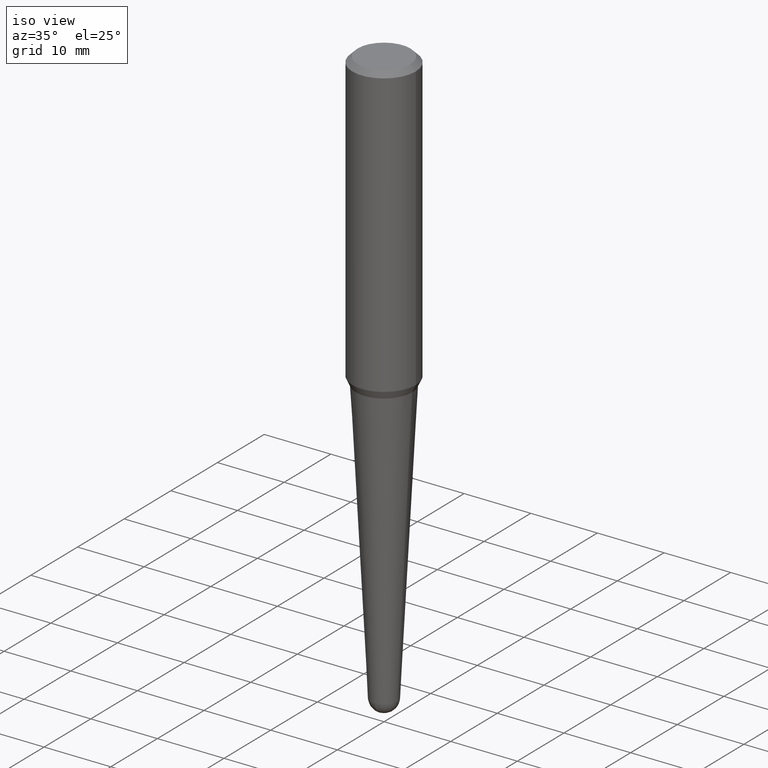
[diagram: clean part render]
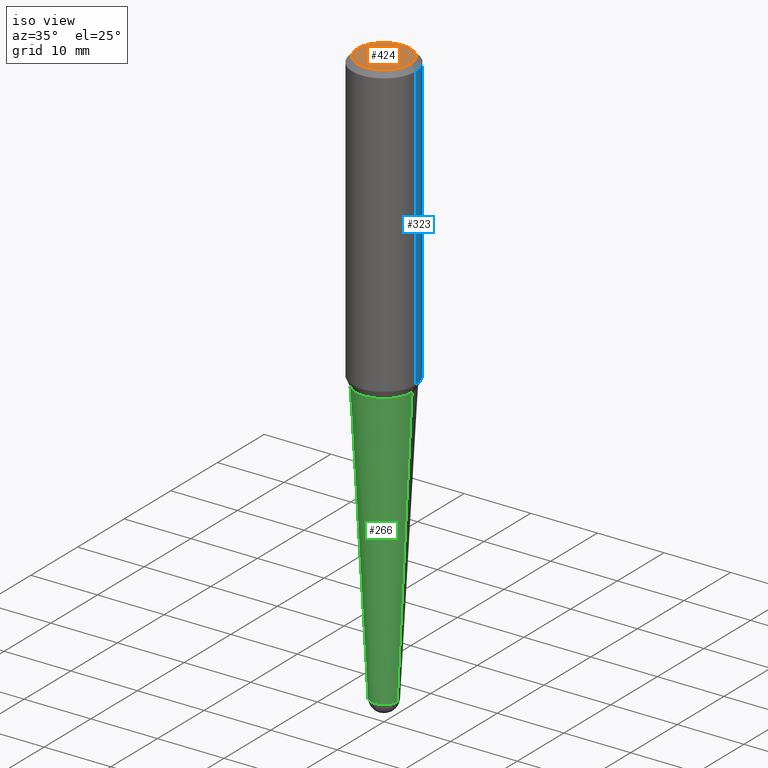
[diagram: same view with three faces highlighted in distinct colors, each labeled with its STEP entity id]
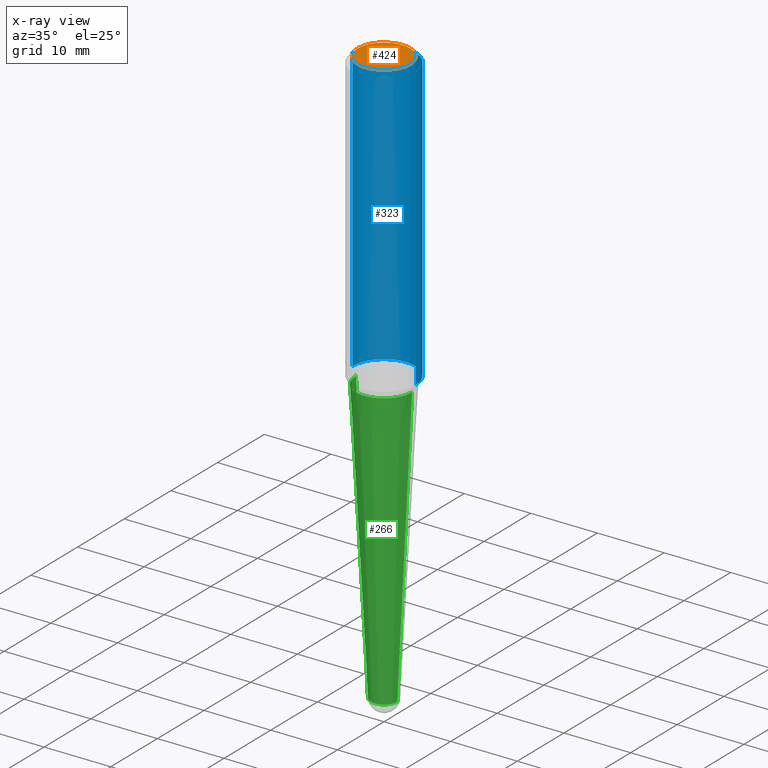
[diagram: x-ray of the same camera — body ghosted, the three highlighted faces saturated]
A machine part, iso view with three faces highlighted in distinct colors.
The next image is the same camera in x-ray (body ghosted, the three faces saturated) — at least one of them is partly hidden behind the body in this view.
Their STEP definitions:

[orange] entity #424 — the highlighted planar face has unit normal (0, -0, -1).
#26 = CARTESIAN_POINT ( 'NONE',  ( -0.1562500000000004718, 1.145642314307903527E-15, -6.443418326246425862E-16 ) ) ;
#54 = AXIS2_PLACEMENT_3D ( 'NONE', #139, #273, #247 ) ;
#56 = DIRECTION ( 'NONE',  ( -1.000000000000000000, 6.982962677686265922E-15, -4.876176775795935793E-29 ) ) ;
#83 = AXIS2_PLACEMENT_3D ( 'NONE', #134, #274, #408 ) ;
#134 = CARTESIAN_POINT ( 'NONE',  ( 1.575717852203708981E-44, -2.249707484444906198E-30, -6.443418326246348948E-16 ) ) ;
#139 = CARTESIAN_POINT ( 'NONE',  ( 1.575717852203708981E-44, -2.249707484444906198E-30, -6.443418326246348948E-16 ) ) ;
#203 = FACE_OUTER_BOUND ( 'NONE', #239, .T. ) ;
#218 = AXIS2_PLACEMENT_3D ( 'NONE', #339, #443, #56 ) ;
#233 = EDGE_CURVE ( 'NONE', #455, #364, #438, .T. ) ;
#239 = EDGE_LOOP ( 'NONE', ( #296, #413 ) ) ;
#247 = DIRECTION ( 'NONE',  ( 1.000000000000000000, -6.982962677686266711E-15, 4.891558762689330142E-29 ) ) ;
#273 = DIRECTION ( 'NONE',  ( -2.445468806185136597E-29, 3.491481338843145583E-15, 1.000000000000000000 ) ) ;
#274 = DIRECTION ( 'NONE',  ( -2.445468806185136597E-29, 3.491481338843145583E-15, 1.000000000000000000 ) ) ;
#296 = ORIENTED_EDGE ( 'NONE', *, *, #233, .T. ) ;
#304 = PLANE ( 'NONE',  #218 ) ;
#333 = CIRCLE ( 'NONE', #54, 0.1562500000000004718 ) ;
#339 = CARTESIAN_POINT ( 'NONE',  ( 7.878589261018543660E-45, -1.124853742222452924E-30, -3.221709163123173488E-16 ) ) ;
#364 = VERTEX_POINT ( 'NONE', #422 ) ;
#408 = DIRECTION ( 'NONE',  ( 1.000000000000000000, -6.982962677686266711E-15, 4.891558762689330142E-29 ) ) ;
#413 = ORIENTED_EDGE ( 'NONE', *, *, #461, .T. ) ;
#422 = CARTESIAN_POINT ( 'NONE',  ( 0.1562500000000004718, -1.233702489286409101E-15, -6.443418326246267104E-16 ) ) ;
#424 = ADVANCED_FACE ( 'NONE', ( #203 ), #304, .F. ) ;
#438 = CIRCLE ( 'NONE', #83, 0.1562500000000004718 ) ;
#443 = DIRECTION ( 'NONE',  ( 2.438088387897960049E-29, -3.491481338843145188E-15, -1.000000000000000000 ) ) ;
#455 = VERTEX_POINT ( 'NONE', #26 ) ;
#461 = EDGE_CURVE ( 'NONE', #364, #455, #333, .T. ) ;

[blue] entity #323 — the highlighted cylindrical surface (partial cylindrical patch) has radius 4.7625 mm, axis along (-0, 0, 1).
#4 = AXIS2_PLACEMENT_3D ( 'NONE', #431, #114, #399 ) ;
#10 = CARTESIAN_POINT ( 'NONE',  ( -1.450455682483482035E-44, 2.070866303999251778E-30, 5.931196827434296760E-16 ) ) ;
#23 = DIRECTION ( 'NONE',  ( -2.445468806185136877E-29, 3.491481338843145188E-15, 1.000000000000000000 ) ) ;
#42 = FACE_OUTER_BOUND ( 'NONE', #267, .T. ) ;
#43 = EDGE_CURVE ( 'NONE', #336, #401, #149, .T. ) ;
#50 = CARTESIAN_POINT ( 'NONE',  ( -0.1874999999999999722, -1.699068257207900914E-15, -0.03125000000000003469 ) ) ;
#62 = DIRECTION ( 'NONE',  ( -2.445468806185136597E-29, 3.491481338843145583E-15, 1.000000000000000000 ) ) ;
#64 = VECTOR ( 'NONE', #23, 39.37007874015748143 ) ;
#73 = EDGE_CURVE ( 'NONE', #361, #138, #107, .T. ) ;
#85 = CARTESIAN_POINT ( 'NONE',  ( 4.169935664663897396E-29, -5.953562981677331975E-15, -1.705168209104609645 ) ) ;
#107 = CIRCLE ( 'NONE', #184, 0.1875000000000002220 ) ;
#109 = CYLINDRICAL_SURFACE ( 'NONE', #381, 0.1875000000000001110 ) ;
#114 = DIRECTION ( 'NONE',  ( -2.445468806185136597E-29, 3.491481338843145583E-15, 1.000000000000000000 ) ) ;
#118 = LINE ( 'NONE', #236, #264 ) ;
#132 = EDGE_CURVE ( 'NONE', #138, #401, #246, .T. ) ;
#138 = VERTEX_POINT ( 'NONE', #444 ) ;
#149 = CIRCLE ( 'NONE', #4, 0.1874999999999999722 ) ;
#153 = DIRECTION ( 'NONE',  ( -2.445468806185136877E-29, 3.491481338843145188E-15, 1.000000000000000000 ) ) ;
#184 = AXIS2_PLACEMENT_3D ( 'NONE', #85, #62, #204 ) ;
#193 = ORIENTED_EDGE ( 'NONE', *, *, #43, .F. ) ;
#204 = DIRECTION ( 'NONE',  ( 1.000000000000000000, -6.982962677686265133E-15, 0.000000000000000000 ) ) ;
#232 = DIRECTION ( 'NONE',  ( -2.445468806185136597E-29, 3.491481338843145583E-15, 1.000000000000000000 ) ) ;
#235 = ORIENTED_EDGE ( 'NONE', *, *, #73, .T. ) ;
#236 = CARTESIAN_POINT ( 'NONE',  ( 0.1875000000000001110, -1.309305502066173628E-15, 5.931196827434387479E-16 ) ) ;
#246 = LINE ( 'NONE', #279, #64 ) ;
#264 = VECTOR ( 'NONE', #153, 39.37007874015748143 ) ;
#267 = EDGE_LOOP ( 'NONE', ( #235, #378, #193, #306 ) ) ;
#279 = CARTESIAN_POINT ( 'NONE',  ( -0.1875000000000001110, 1.332267629550190807E-15, 5.931196827434205055E-16 ) ) ;
#306 = ORIENTED_EDGE ( 'NONE', *, *, #340, .F. ) ;
#323 = ADVANCED_FACE ( 'NONE', ( #42 ), #109, .T. ) ;
#336 = VERTEX_POINT ( 'NONE', #425 ) ;
#340 = EDGE_CURVE ( 'NONE', #361, #336, #118, .T. ) ;
#355 = DIRECTION ( 'NONE',  ( 1.000000000000000000, -6.982962677686266711E-15, 4.852736867747363404E-29 ) ) ;
#361 = VERTEX_POINT ( 'NONE', #435 ) ;
#378 = ORIENTED_EDGE ( 'NONE', *, *, #132, .T. ) ;
#381 = AXIS2_PLACEMENT_3D ( 'NONE', #10, #232, #355 ) ;
#399 = DIRECTION ( 'NONE',  ( 1.000000000000000000, -6.982962677686266711E-15, 0.000000000000000000 ) ) ;
#401 = VERTEX_POINT ( 'NONE', #50 ) ;
#425 = CARTESIAN_POINT ( 'NONE',  ( 0.1874999999999999722, -1.418414293905023123E-15, -0.03125000000000003469 ) ) ;
#431 = CARTESIAN_POINT ( 'NONE',  ( 7.642090019328561499E-31, -1.091087918388484350E-16, -0.03125000000000003469 ) ) ;
#435 = CARTESIAN_POINT ( 'NONE',  ( 0.1875000000000002220, -7.262868483743506194E-15, -1.705168209104609645 ) ) ;
#444 = CARTESIAN_POINT ( 'NONE',  ( -0.1875000000000002220, -4.621295352127141759E-15, -1.705168209104609645 ) ) ;

[green] entity #266 — the highlighted conical surface has half-angle 3 deg.
#8 = VERTEX_POINT ( 'NONE', #298 ) ;
#16 = ORIENTED_EDGE ( 'NONE', *, *, #257, .T. ) ;
#21 = DIRECTION ( 'NONE',  ( -2.445468806185136597E-29, 3.491481338843145583E-15, 1.000000000000000000 ) ) ;
#24 = CARTESIAN_POINT ( 'NONE',  ( 8.378145410457613452E-29, -1.196177120752549174E-14, -3.425987438182573896 ) ) ;
#53 = ORIENTED_EDGE ( 'NONE', *, *, #460, .T. ) ;
#60 = DIRECTION ( 'NONE',  ( 1.000000000000000000, -6.982962677686269866E-15, 0.000000000000000000 ) ) ;
#75 = AXIS2_PLACEMENT_3D ( 'NONE', #24, #99, #375 ) ;
#91 = CONICAL_SURFACE ( 'NONE', #421, 0.07799296666433258585, 0.05235987755982991071 ) ;
#93 = CARTESIAN_POINT ( 'NONE',  ( 8.378145410457613452E-29, -1.196177120752549174E-14, -3.425987438182573896 ) ) ;
#94 = ORIENTED_EDGE ( 'NONE', *, *, #453, .F. ) ;
#99 = DIRECTION ( 'NONE',  ( -2.445468806185136597E-29, 3.491481338843145583E-15, 1.000000000000000000 ) ) ;
#100 = CARTESIAN_POINT ( 'NONE',  ( 0.1658277464057546224, -7.268061307051711819E-15, -1.750000000000000000 ) ) ;
#101 = VERTEX_POINT ( 'NONE', #100 ) ;
#122 = CARTESIAN_POINT ( 'NONE',  ( 4.279570410823988484E-29, -6.110092342975504671E-15, -1.750000000000000000 ) ) ;
#127 = LINE ( 'NONE', #171, #208 ) ;
#165 = DIRECTION ( 'NONE',  ( 1.000000000000000000, -6.982962677686269866E-15, 0.000000000000000000 ) ) ;
#166 = ORIENTED_EDGE ( 'NONE', *, *, #419, .T. ) ;
#171 = CARTESIAN_POINT ( 'NONE',  ( 0.07799296666433258585, -1.250639318286455540E-14, -3.425987438182573896 ) ) ;
#208 = VECTOR ( 'NONE', #341, 39.37007874015748854 ) ;
#209 = VERTEX_POINT ( 'NONE', #215 ) ;
#215 = CARTESIAN_POINT ( 'NONE',  ( 0.07799296666433258585, -9.887227244958132819E-15, -3.425987438182573896 ) ) ;
#224 = AXIS2_PLACEMENT_3D ( 'NONE', #122, #366, #283 ) ;
#229 = EDGE_LOOP ( 'NONE', ( #94, #16, #53, #166, #397 ) ) ;
#243 = DIRECTION ( 'NONE',  ( -2.445468806185136597E-29, 3.491481338843145583E-15, 1.000000000000000000 ) ) ;
#252 = AXIS2_PLACEMENT_3D ( 'NONE', #269, #21, #165 ) ;
#257 = EDGE_CURVE ( 'NONE', #332, #434, #318, .T. ) ;
#266 = ADVANCED_FACE ( 'NONE', ( #305 ), #91, .T. ) ;
#269 = CARTESIAN_POINT ( 'NONE',  ( 8.378145410457613452E-29, -1.196177120752549174E-14, -3.425987438182573896 ) ) ;
#280 = CIRCLE ( 'NONE', #75, 0.07799296666433258585 ) ;
#283 = DIRECTION ( 'NONE',  ( 1.000000000000000000, -6.982962677686265922E-15, 0.000000000000000000 ) ) ;
#298 = CARTESIAN_POINT ( 'NONE',  ( -0.1658277464057546224, -4.931815337014733979E-15, -1.750000000000000000 ) ) ;
#305 = FACE_OUTER_BOUND ( 'NONE', #229, .T. ) ;
#311 = CARTESIAN_POINT ( 'NONE',  ( -5.541733590371248362E-16, -0.07799296666434411829, -3.425987438182573896 ) ) ;
#318 = CIRCLE ( 'NONE', #252, 0.07799296666433258585 ) ;
#332 = VERTEX_POINT ( 'NONE', #363 ) ;
#341 = DIRECTION ( 'NONE',  ( 0.05233595624294386239, 3.121236355867708811E-15, 0.9986295347545738332 ) ) ;
#353 = EDGE_CURVE ( 'NONE', #8, #101, #389, .T. ) ;
#357 = VECTOR ( 'NONE', #411, 39.37007874015748854 ) ;
#363 = CARTESIAN_POINT ( 'NONE',  ( -0.07799296666433258585, -8.169706592751506412E-15, -3.425987438182573896 ) ) ;
#366 = DIRECTION ( 'NONE',  ( -2.445468806185136597E-29, 3.491481338843145583E-15, 1.000000000000000000 ) ) ;
#375 = DIRECTION ( 'NONE',  ( 1.000000000000000000, -6.982962677686269866E-15, 0.000000000000000000 ) ) ;
#389 = CIRCLE ( 'NONE', #224, 0.1658277464057546224 ) ;
#397 = ORIENTED_EDGE ( 'NONE', *, *, #353, .F. ) ;
#403 = LINE ( 'NONE', #451, #357 ) ;
#411 = DIRECTION ( 'NONE',  ( -0.05233595624294386239, 3.858565720288030357E-15, 0.9986295347545738332 ) ) ;
#419 = EDGE_CURVE ( 'NONE', #209, #101, #127, .T. ) ;
#421 = AXIS2_PLACEMENT_3D ( 'NONE', #93, #243, #60 ) ;
#434 = VERTEX_POINT ( 'NONE', #311 ) ;
#451 = CARTESIAN_POINT ( 'NONE',  ( -0.07799296666433258585, -1.140759784848827963E-14, -3.425987438182573896 ) ) ;
#453 = EDGE_CURVE ( 'NONE', #332, #8, #403, .T. ) ;
#460 = EDGE_CURVE ( 'NONE', #434, #209, #280, .T. ) ;